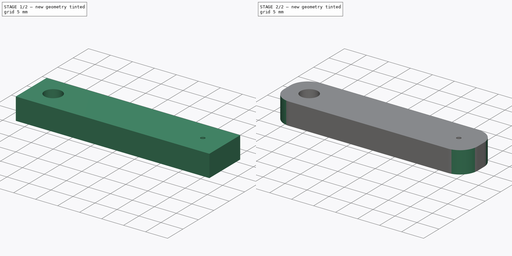
[diagram: build sequence overview — one tinted view per stage of 2, left to right]
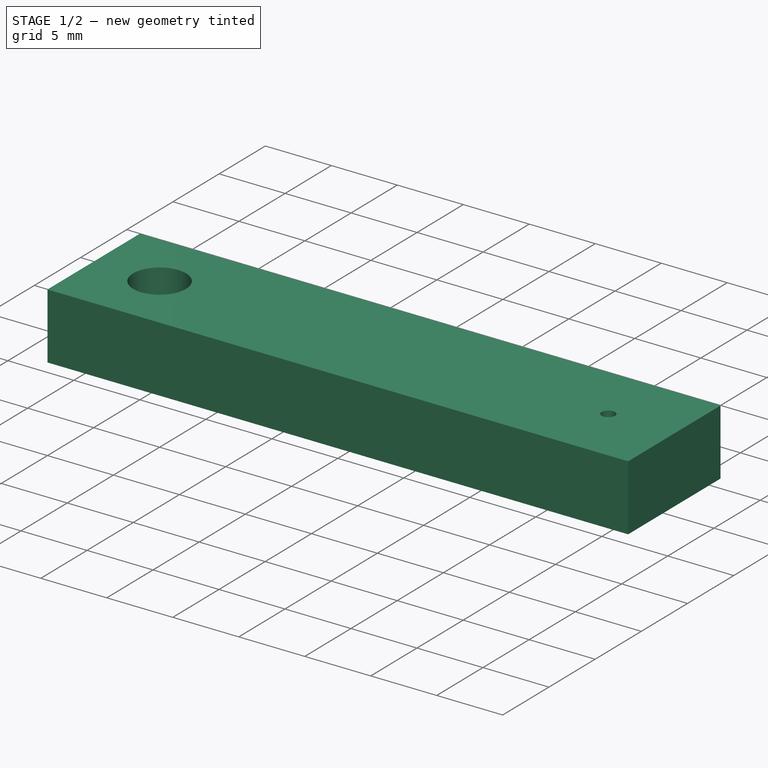
[diagram: stage 1 of 2 — iso view after this stage's code; geometry added in this stage tinted green]
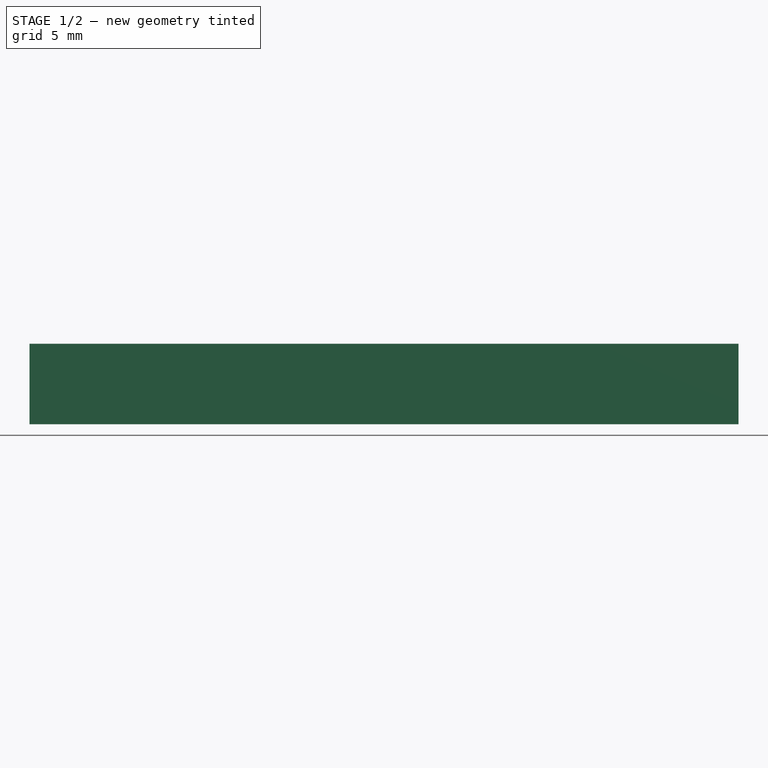
[diagram: stage 1 of 2 — front view after this stage's code; geometry added in this stage tinted green]
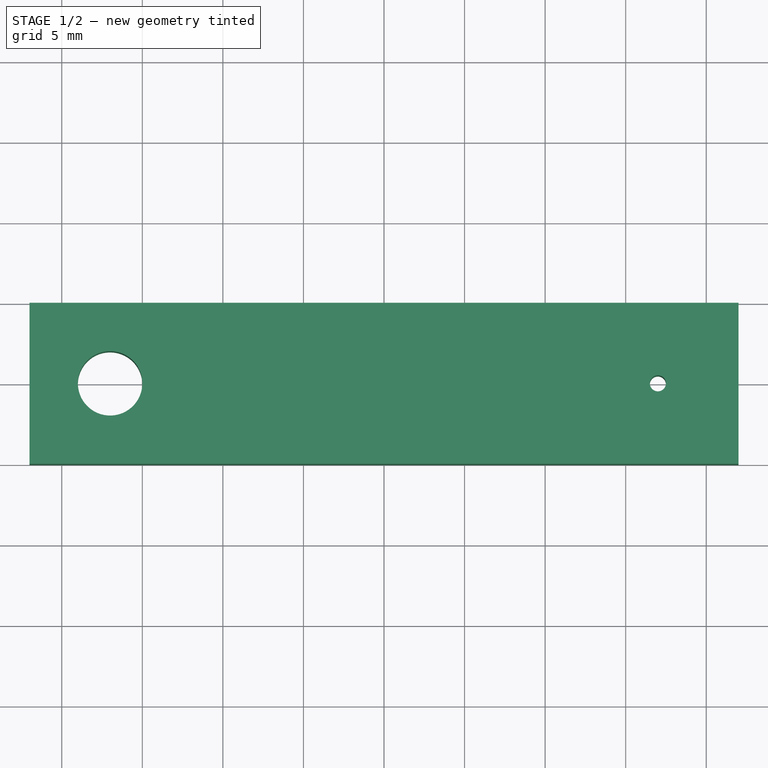
[diagram: stage 1 of 2 — top view after this stage's code; geometry added in this stage tinted green]
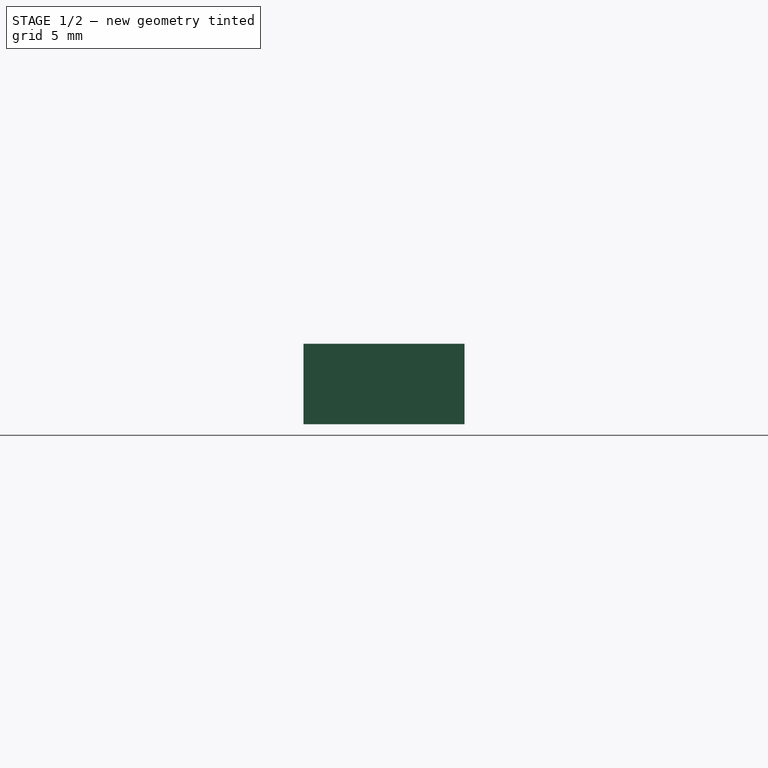
[diagram: stage 1 of 2 — right view after this stage's code; geometry added in this stage tinted green]
FCSTD DOCUMENT  (FreeCAD 0.18.3R)
Label: rotor
License: All rights reserved
LicenseURL: http://en.wikipedia.org/wiki/All_rights_reserved
objects: Sketcher::SketchObject×3, PartDesign::Pad×2, PartDesign::Body×2, PartDesign::Fillet×1, Part::Cut×1
note: 11 computed .brp shape members not serialized (recipe doc carries the construction recipe); baked Part::Feature solids carry a one-line shape summary decoded from their .brp

FEATURE [Sketcher::SketchObject] Sketch
  MapMode = 5
  Support = -> [XY_Plane]
  sketch-geometry (6):
    g0: LineSegment StartX=-22 StartY=5 StartZ=0 EndX=22 EndY=5 EndZ=0
    g1: LineSegment StartX=22 StartY=5 StartZ=0 EndX=22 EndY=-5 EndZ=0
    g2: LineSegment StartX=22 StartY=-5 StartZ=0 EndX=-22 EndY=-5 EndZ=0
    g3: LineSegment StartX=-22 StartY=-5 StartZ=0 EndX=-22 EndY=5 EndZ=0
    g4: Circle CenterX=-17 CenterY=0 CenterZ=0 NormalX=0 NormalY=0 NormalZ=1 AngleXU=0 Radius=2
    g5: Circle CenterX=17 CenterY=0 CenterZ=0 NormalX=0 NormalY=0 NormalZ=1 AngleXU=0 Radius=0.5
  constraints (18):
    c: Coincident(g0,g1)
    c: Coincident(g1,g2)
    c: Coincident(g2,g3)
    c: Coincident(g3,g0)
    c: Horizontal(g0)
    c: Horizontal(g2)
    c: Vertical(g1)
    c: Vertical(g3)
    c: Radius(g4) = 2
    c: DistanceY(g-1,g4) = 0
    c: DistanceX(g4,g-1) = 17
    c: Distance(g0) = 44
    c: Distance(g1) = 10
    c: DistanceY(g-1,g0) = 5
    c: DistanceX(g-1,g0) = 22
    c: Radius(g5) = 0.5
    c: DistanceX(g-1,g5) = 17
    c: DistanceY(g5,g-1) = 0
FEATURE [PartDesign::Pad] Pad
  Length = 5
  Length2 = 100
  Profile = -> Sketch
  Type = 0
FEATURE [PartDesign::Body] Body
  Group = -> [Sketch,Pad,Fillet]
  Origin = -> Origin
  Tip = -> Fillet
FEATURE [Sketcher::SketchObject] Sketch001
  MapMode = 5
  Support = -> [XY_Plane001]
  sketch-geometry (30):
    g0: LineSegment StartX=0.897343 StartY=1.56038 StartZ=0 EndX=1.33806 EndY=1.48647 EndZ=0
    g1: LineSegment StartX=1.33806 StartY=1.48647 StartZ=0 EndX=1.45774 EndY=1.05593 EndZ=0
    g2: LineSegment StartX=0.179488 StartY=1.79103 StartZ=0 EndX=0.611809 EndY=1.90412 EndZ=0
    g3: LineSegment StartX=0.611809 StartY=1.90412 StartZ=0 EndX=0.897343 EndY=1.56038 EndZ=0
    g4: LineSegment StartX=1.76084 StartY=0.373401 StartZ=0 EndX=2 EndY=0 EndZ=0
    g5: LineSegment StartX=2 StartY=0 StartZ=0 EndX=1.76084 EndY=-0.373401 EndZ=0
    g6: LineSegment StartX=1.45774 StartY=1.05593 StartZ=0 EndX=1.82787 EndY=0.81173 EndZ=0
    g7: LineSegment StartX=1.82787 StartY=0.81173 StartZ=0 EndX=1.76084 EndY=0.373401 EndZ=0
    g8: LineSegment StartX=1.76084 StartY=-0.373401 StartZ=0 EndX=1.82787 EndY=-0.81173 EndZ=0
    g9: LineSegment StartX=1.82787 StartY=-0.81173 StartZ=0 EndX=1.45774 EndY=-1.05593 EndZ=0
    g10: LineSegment StartX=1.45774 StartY=-1.05593 StartZ=0 EndX=1.34109 EndY=-1.48373 EndZ=0
    g11: LineSegment StartX=1.34109 StartY=-1.48373 StartZ=0 EndX=0.903715 EndY=-1.55669 EndZ=0
    g12: LineSegment StartX=0.903715 StartY=-1.55669 StartZ=0 EndX=0.623475 EndY=-1.90034 EndZ=0
    g13: LineSegment StartX=0.623475 StartY=-1.90034 StartZ=0 EndX=0.194127 EndY=-1.7895 EndZ=0
    g14: LineSegment StartX=0.194127 StartY=-1.7895 StartZ=0 EndX=-0.201465 EndY=-1.98983 EndZ=0
    g15: LineSegment StartX=-0.201465 StartY=-1.98983 StartZ=0 EndX=-0.548876 EndY=-1.71427 EndZ=0
    g16: LineSegment StartX=-0.548876 StartY=-1.71427 StartZ=0 EndX=-0.991727 EndY=-1.7368 EndZ=0
    g17: LineSegment StartX=-0.991727 StartY=-1.7368 StartZ=0 EndX=-1.1974 EndY=-1.34396 EndZ=0
    g18: LineSegment StartX=-1.1974 StartY=-1.34396 StartZ=0 EndX=-1.61128 EndY=-1.18481 EndZ=0
    g19: LineSegment StartX=-1.61128 StartY=-1.18481 StartZ=0 EndX=-1.63981 EndY=-0.742308 EndZ=0
    g20: LineSegment StartX=-1.63981 StartY=-0.742308 StartZ=0 EndX=-1.95347 EndY=-0.428878 EndZ=0
    g21: LineSegment StartX=-1.95347 StartY=-0.428878 StartZ=0 EndX=-1.79995 EndY=-0.0128787 EndZ=0
    g22: LineSegment StartX=-1.79995 StartY=-0.0128787 StartZ=0 EndX=-1.95941 EndY=0.400881 EndZ=0
    g23: LineSegment StartX=-1.95941 StartY=0.400881 StartZ=0 EndX=-1.65026 EndY=0.718768 EndZ=0
    g24: LineSegment StartX=-1.65026 StartY=0.718768 StartZ=0 EndX=-1.62807 EndY=1.16164 EndZ=0
    g25: LineSegment StartX=-1.62807 StartY=1.16164 StartZ=0 EndX=-1.21651 EndY=1.32669 EndZ=0
    g26: LineSegment StartX=-1.21651 StartY=1.32669 StartZ=0 EndX=-1.01648 EndY=1.72243 EndZ=0
    g27: LineSegment StartX=-1.01648 StartY=1.72243 StartZ=0 EndX=-0.569861 EndY=1.70741 EndZ=0
    g28: LineSegment StartX=-0.569861 StartY=1.70741 StartZ=0 EndX=-0.221793 EndY=1.98766 EndZ=0
    g29: LineSegment StartX=-0.221793 StartY=1.98766 StartZ=0 EndX=0.179488 EndY=1.79103 EndZ=0
  constraints (96):
    c: Coincident(g1,g0)
    c: Distance(g0,g-1) = 2
    c: Distance(g1,g-1) = 1.8
    c: Distance(g0,g-1) = 1.8
    c: Equal(g1,g0)
    c: Coincident(g3,g2)
    c: Distance(g3,g2) = 0.754
    c: Equal(g3,g2)
    c: Distance(g2,g-1) = 2
    c: Distance(g2,g-1) = 1.8
    c: Coincident(g3,g0)
    c: Coincident(g5,g4)
    c: Equal(g5,g4)
    c: Coincident(g7,g6)
    c: Equal(g7,g6)
    c: Coincident(g7,g4)
    c: Distance(g-1,g6) = 2
    c: Coincident(g6,g1)
    c: Distance(g-1,g4) = 1.8
    c: Distance(g-1,g4) = 2
    c: Distance(g-1,g5) = 1.8
    c: Equal(g2,g3)
    c: Equal(g3,g0)
    c: Equal(g5,g4)
    c: Equal(g4,g7)
    c: Equal(g7,g6)
    c: Equal(g1,g1)
    c: Equal(g3,g0)
    c: PointOnObject(g4,g-1)
    c: Coincident(g8,g9)
    c: Coincident(g9,g10)
    c: Coincident(g10,g11)
    c: Coincident(g11,g12)
    c: Coincident(g12,g13)
    c: Coincident(g13,g14)
    c: Coincident(g14,g15)
    c: Coincident(g15,g16)
    c: Coincident(g16,g17)
    c: Coincident(g17,g18)
    c: Coincident(g18,g19)
    c: Coincident(g19,g20)
    c: Coincident(g20,g21)
    c: Coincident(g21,g22)
    c: Coincident(g22,g23)
    c: Coincident(g23,g24)
    c: Coincident(g24,g25)
    c: Coincident(g25,g26)
    c: Coincident(g26,g27)
    c: Coincident(g27,g28)
    c: Coincident(g28,g29)
    c: Coincident(g29,g2)
    c: Coincident(g8,g5)
    c: Equal(g29,g2)
    c: Equal(g28,g29)
    c: Equal(g27,g28)
    c: Equal(g26,g25)
    c: Equal(g25,g24)
    c: Equal(g23,g22)
    c: Equal(g24,g23)
    c: Equal(g20,g21)
    c: Equal(g19,g20)
    c: Equal(g18,g19)
    c: Equal(g17,g18)
    c: Equal(g16,g17)
    c: Equal(g15,g16)
    c: Equal(g14,g15)
    c: Equal(g14,g13)
    c: Equal(g12,g13)
    c: Equal(g11,g12)
    c: Equal(g10,g11)
    c: Equal(g9,g10)
    c: Equal(g8,g9)
    c: Equal(g5,g8)
    c: Distance(g9,g-1) = 1.8
    c: Distance(g11,g-1) = 1.8
    c: Distance(g13,g-1) = 1.8
    c: Distance(g-1,g8) = 2
    c: Distance(g10,g-1) = 2
    c: Distance(g-1,g12) = 2
    c: Distance(g15,g-1) = 1.8
    c: Distance(g14,g-1) = 2
    c: Distance(g-1,g16) = 2
    c: Distance(g17,g-1) = 1.8
    c: Distance(g18,g-1) = 2
    c: Distance(g19,g-1) = 1.8
    c: Distance(g20,g-1) = 2
    c: Distance(g21,g-1) = 1.8
    c: Distance(g-1,g22) = 2
    c: Distance(g23,g-1) = 1.8
    c: Distance(g24,g-1) = 2
    c: Distance(g25,g-1) = 1.8
    c: Distance(g26,g-1) = 2
    c: Distance(g27,g-1) = 1.8
    c: Distance(g28,g-1) = 2
    c: Equal(g25,g24)
    c: Equal(g25,g6)
FEATURE [PartDesign::Pad] Pad001
  Length = 4
  Length2 = 100
  Profile = -> Sketch001
  Type = 0
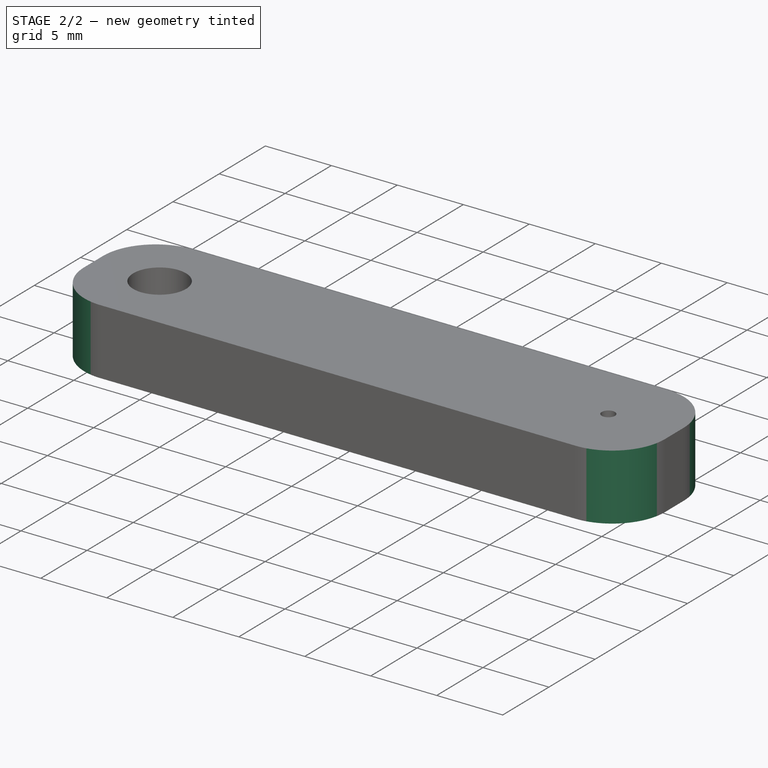
[diagram: stage 2 of 2 — iso view after this stage's code; geometry added in this stage tinted green]
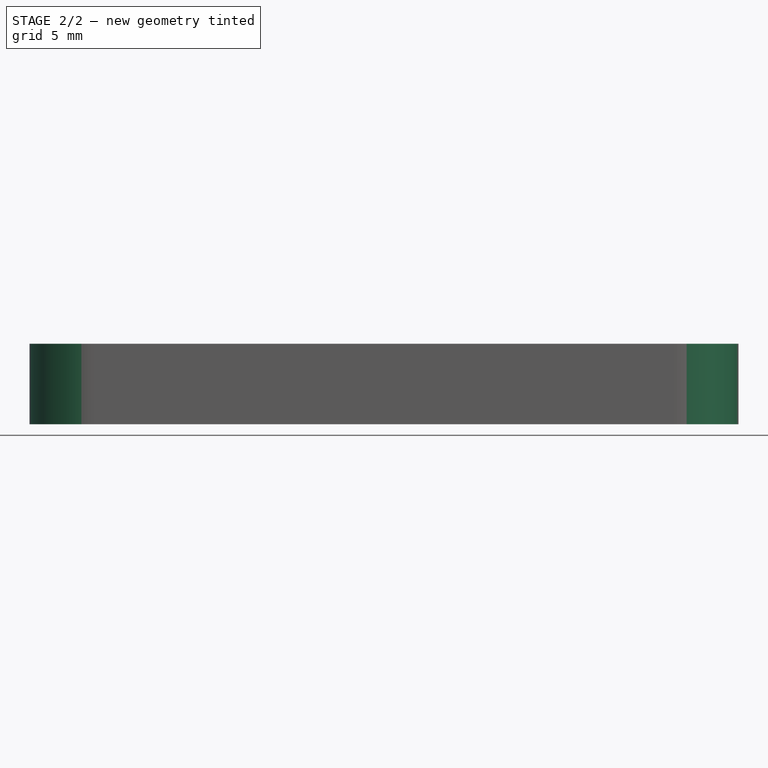
[diagram: stage 2 of 2 — front view after this stage's code; geometry added in this stage tinted green]
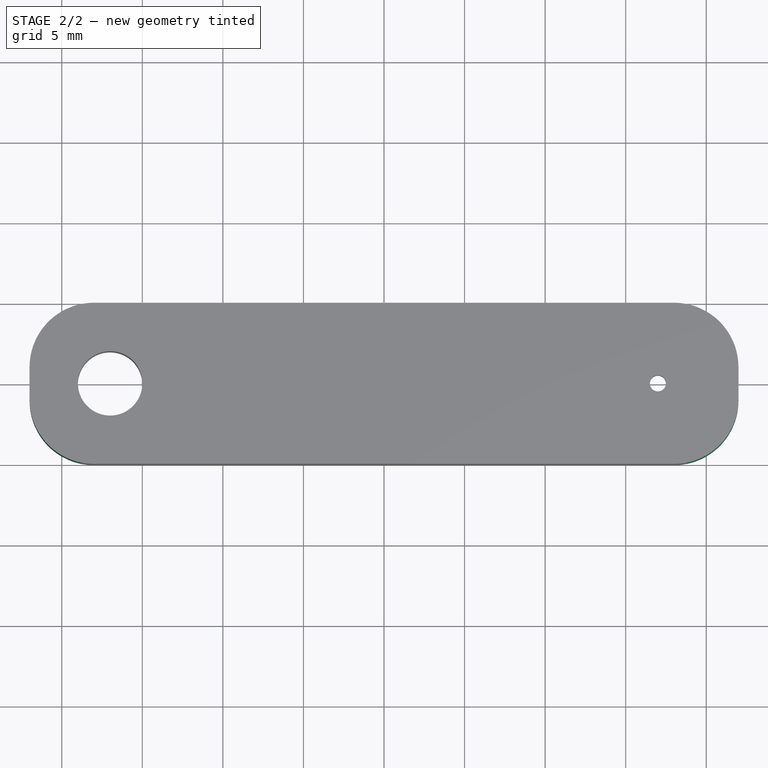
[diagram: stage 2 of 2 — top view after this stage's code; geometry added in this stage tinted green]
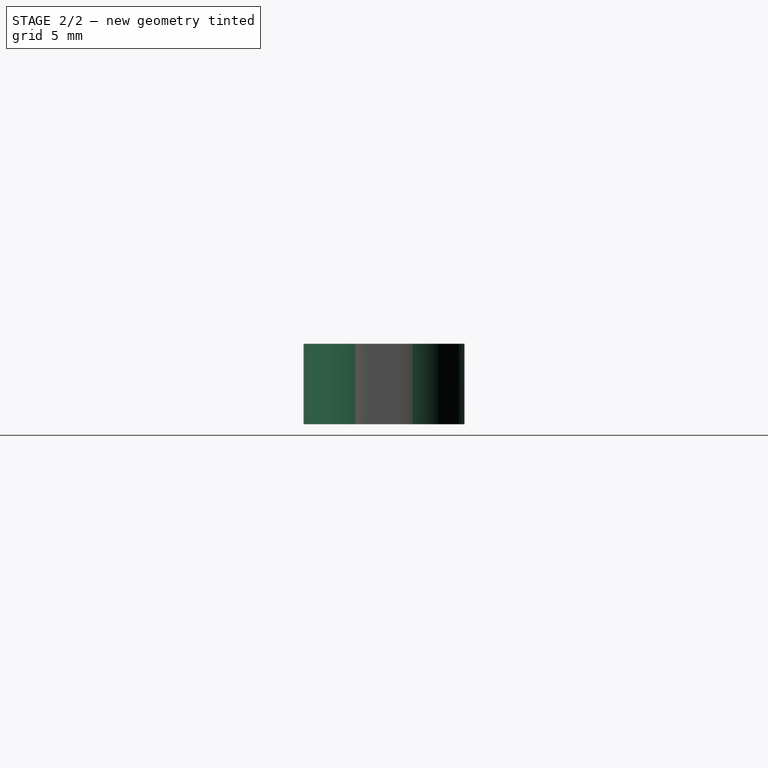
[diagram: stage 2 of 2 — right view after this stage's code; geometry added in this stage tinted green]
FEATURE [PartDesign::Fillet] Fillet
  Base = -> Pad [Edge1,Edge8,Edge5,Edge2]
  BaseFeature = -> Pad
  Radius = 4
FEATURE [PartDesign::Body] Body001
  Group = -> [Sketch001,Pad001]
  Origin = -> Origin001
  Placement = pos=(17,0,-1) rot=(0,0,1;0rad)
  Tip = -> Pad001
FEATURE [Sketcher::SketchObject] Sketch002
  MapMode = 5
  Support = -> [XY_Plane002]
  sketch-geometry (30):
    g0: LineSegment StartX=0.897343 StartY=1.56038 StartZ=0 EndX=1.33806 EndY=1.48647 EndZ=0
    g1: LineSegment StartX=1.33806 StartY=1.48647 StartZ=0 EndX=1.45774 EndY=1.05593 EndZ=0
    g2: LineSegment StartX=0.179488 StartY=1.79103 StartZ=0 EndX=0.611809 EndY=1.90412 EndZ=0
    g3: LineSegment StartX=0.611809 StartY=1.90412 StartZ=0 EndX=0.897343 EndY=1.56038 EndZ=0
    g4: LineSegment StartX=1.76084 StartY=0.373401 StartZ=0 EndX=2 EndY=0 EndZ=0
    g5: LineSegment StartX=2 StartY=0 StartZ=0 EndX=1.76084 EndY=-0.373401 EndZ=0
    g6: LineSegment StartX=1.45774 StartY=1.05593 StartZ=0 EndX=1.82787 EndY=0.81173 EndZ=0
    g7: LineSegment StartX=1.82787 StartY=0.81173 StartZ=0 EndX=1.76084 EndY=0.373401 EndZ=0
    g8: LineSegment StartX=1.76084 StartY=-0.373401 StartZ=0 EndX=1.82787 EndY=-0.81173 EndZ=0
    g9: LineSegment StartX=1.82787 StartY=-0.81173 StartZ=0 EndX=1.45774 EndY=-1.05593 EndZ=0
    g10: LineSegment StartX=1.45774 StartY=-1.05593 StartZ=0 EndX=1.34109 EndY=-1.48373 EndZ=0
    g11: LineSegment StartX=1.34109 StartY=-1.48373 StartZ=0 EndX=0.903715 EndY=-1.55669 EndZ=0
    g12: LineSegment StartX=0.903715 StartY=-1.55669 StartZ=0 EndX=0.623475 EndY=-1.90034 EndZ=0
    g13: LineSegment StartX=0.623475 StartY=-1.90034 StartZ=0 EndX=0.194127 EndY=-1.7895 EndZ=0
    g14: LineSegment StartX=0.194127 StartY=-1.7895 StartZ=0 EndX=-0.201465 EndY=-1.98983 EndZ=0
    g15: LineSegment StartX=-0.201465 StartY=-1.98983 StartZ=0 EndX=-0.548876 EndY=-1.71427 EndZ=0
    g16: LineSegment StartX=-0.548876 StartY=-1.71427 StartZ=0 EndX=-0.991727 EndY=-1.7368 EndZ=0
    g17: LineSegment StartX=-0.991727 StartY=-1.7368 StartZ=0 EndX=-1.1974 EndY=-1.34396 EndZ=0
    g18: LineSegment StartX=-1.1974 StartY=-1.34396 StartZ=0 EndX=-1.61128 EndY=-1.18481 EndZ=0
    g19: LineSegment StartX=-1.61128 StartY=-1.18481 StartZ=0 EndX=-1.63981 EndY=-0.742308 EndZ=0
    g20: LineSegment StartX=-1.63981 StartY=-0.742308 StartZ=0 EndX=-1.95347 EndY=-0.428878 EndZ=0
    g21: LineSegment StartX=-1.95347 StartY=-0.428878 StartZ=0 EndX=-1.79995 EndY=-0.0128787 EndZ=0
    g22: LineSegment StartX=-1.79995 StartY=-0.0128787 StartZ=0 EndX=-1.95941 EndY=0.400881 EndZ=0
    g23: LineSegment StartX=-1.95941 StartY=0.400881 StartZ=0 EndX=-1.65026 EndY=0.718768 EndZ=0
    g24: LineSegment StartX=-1.65026 StartY=0.718768 StartZ=0 EndX=-1.62807 EndY=1.16164 EndZ=0
    g25: LineSegment StartX=-1.62807 StartY=1.16164 StartZ=0 EndX=-1.21651 EndY=1.32669 EndZ=0
    g26: LineSegment StartX=-1.21651 StartY=1.32669 StartZ=0 EndX=-1.01648 EndY=1.72243 EndZ=0
    g27: LineSegment StartX=-1.01648 StartY=1.72243 StartZ=0 EndX=-0.569861 EndY=1.70741 EndZ=0
    g28: LineSegment StartX=-0.569861 StartY=1.70741 StartZ=0 EndX=-0.221793 EndY=1.98766 EndZ=0
    g29: LineSegment StartX=-0.221793 StartY=1.98766 StartZ=0 EndX=0.179488 EndY=1.79103 EndZ=0
  constraints (96):
    c: Coincident(g1,g0)
    c: Distance(g0,g-1) = 2
    c: Distance(g1,g-1) = 1.8
    c: Distance(g0,g-1) = 1.8
    c: Equal(g1,g0)
    c: Coincident(g3,g2)
    c: Distance(g3,g2) = 0.754
    c: Equal(g3,g2)
    c: Distance(g2,g-1) = 2
    c: Distance(g2,g-1) = 1.8
    c: Coincident(g3,g0)
    c: Coincident(g5,g4)
    c: Equal(g5,g4)
    c: Coincident(g7,g6)
    c: Equal(g7,g6)
    c: Coincident(g7,g4)
    c: Distance(g-1,g6) = 2
    c: Coincident(g6,g1)
    c: Distance(g-1,g4) = 1.8
    c: Distance(g-1,g4) = 2
    c: Distance(g-1,g5) = 1.8
    c: Equal(g2,g3)
    c: Equal(g3,g0)
    c: Equal(g5,g4)
    c: Equal(g4,g7)
    c: Equal(g7,g6)
    c: Equal(g1,g1)
    c: Equal(g3,g0)
    c: PointOnObject(g4,g-1)
    c: Coincident(g8,g9)
    c: Coincident(g9,g10)
    c: Coincident(g10,g11)
    c: Coincident(g11,g12)
    c: Coincident(g12,g13)
    c: Coincident(g13,g14)
    c: Coincident(g14,g15)
    c: Coincident(g15,g16)
    c: Coincident(g16,g17)
    c: Coincident(g17,g18)
    c: Coincident(g18,g19)
    c: Coincident(g19,g20)
    c: Coincident(g20,g21)
    c: Coincident(g21,g22)
    c: Coincident(g22,g23)
    c: Coincident(g23,g24)
    c: Coincident(g24,g25)
    c: Coincident(g25,g26)
    c: Coincident(g26,g27)
    c: Coincident(g27,g28)
    c: Coincident(g28,g29)
    c: Coincident(g29,g2)
    c: Coincident(g8,g5)
    c: Equal(g29,g2)
    c: Equal(g28,g29)
    c: Equal(g27,g28)
    c: Equal(g26,g25)
    c: Equal(g25,g24)
    c: Equal(g23,g22)
    c: Equal(g24,g23)
    c: Equal(g20,g21)
    c: Equal(g19,g20)
    c: Equal(g18,g19)
    c: Equal(g17,g18)
    c: Equal(g16,g17)
    c: Equal(g15,g16)
    c: Equal(g14,g15)
    c: Equal(g14,g13)
    c: Equal(g12,g13)
    c: Equal(g11,g12)
    c: Equal(g10,g11)
    c: Equal(g9,g10)
    c: Equal(g8,g9)
    c: Equal(g5,g8)
    c: Distance(g9,g-1) = 1.8
    c: Distance(g11,g-1) = 1.8
    c: Distance(g13,g-1) = 1.8
    c: Distance(g-1,g8) = 2
    c: Distance(g10,g-1) = 2
    c: Distance(g-1,g12) = 2
    c: Distance(g15,g-1) = 1.8
    c: Distance(g14,g-1) = 2
    c: Distance(g-1,g16) = 2
    c: Distance(g17,g-1) = 1.8
    c: Distance(g18,g-1) = 2
    c: Distance(g19,g-1) = 1.8
    c: Distance(g20,g-1) = 2
    c: Distance(g21,g-1) = 1.8
    c: Distance(g-1,g22) = 2
    c: Distance(g23,g-1) = 1.8
    c: Distance(g24,g-1) = 2
    c: Distance(g25,g-1) = 1.8
    c: Distance(g26,g-1) = 2
    c: Distance(g27,g-1) = 1.8
    c: Distance(g28,g-1) = 2
    c: Equal(g25,g24)
    c: Equal(g25,g6)
FEATURE [Part::Cut] Cut
  Base = -> Body
  Tool = -> Body001
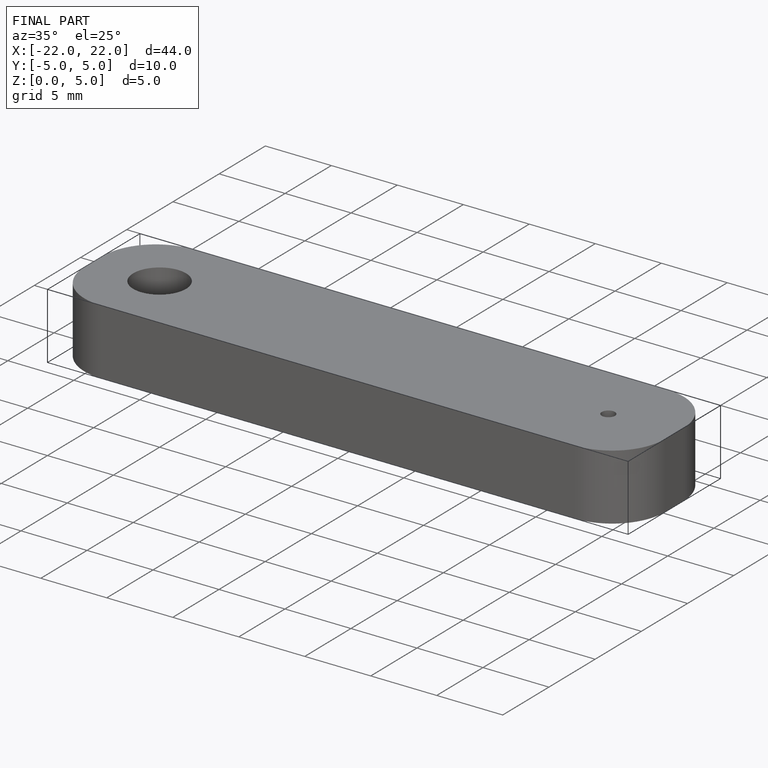
[diagram: finished part — iso view with bounding-box wireframe]
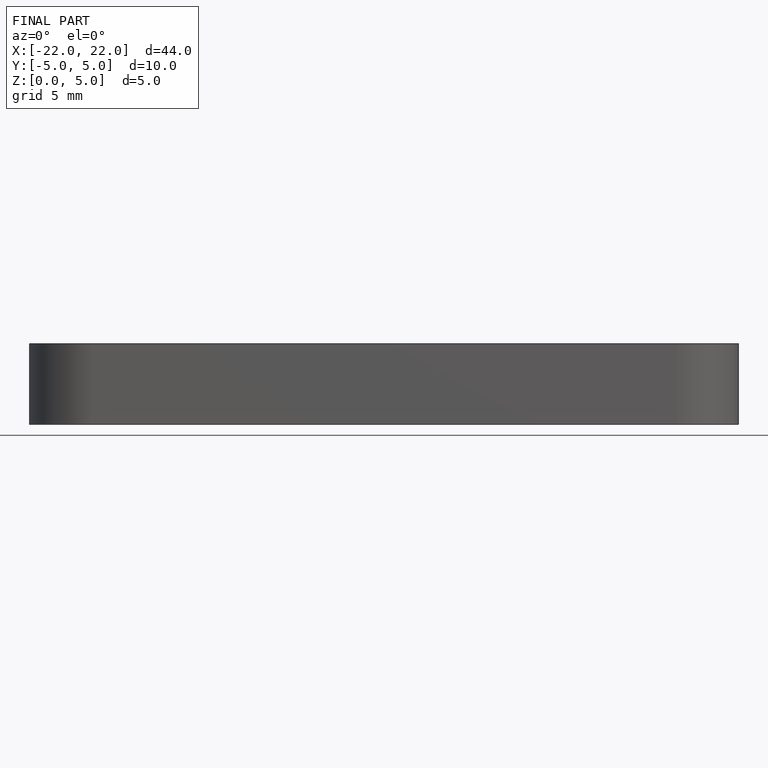
[diagram: finished part — front view with bounding-box wireframe]
